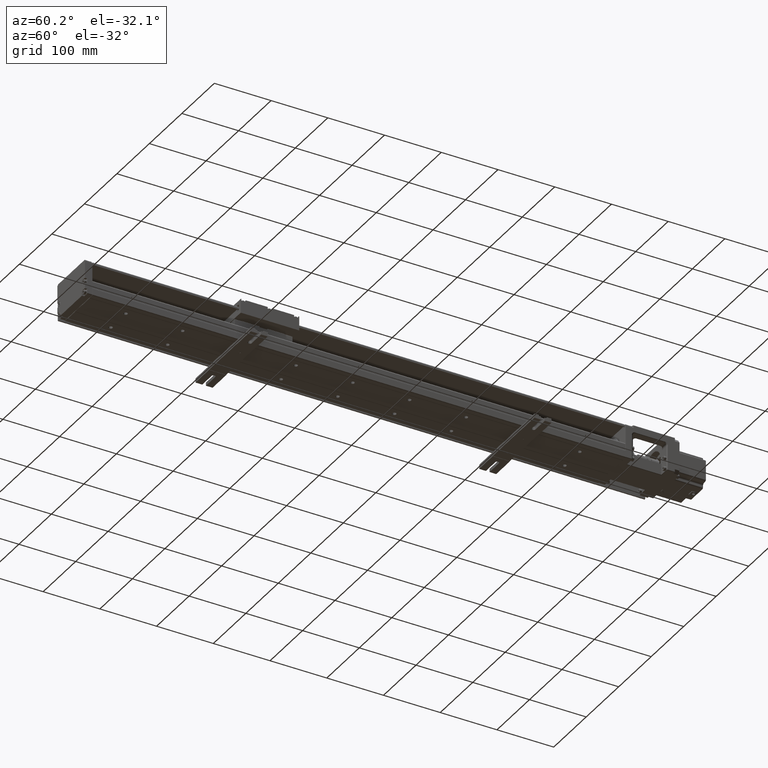
[diagram: clean part render]
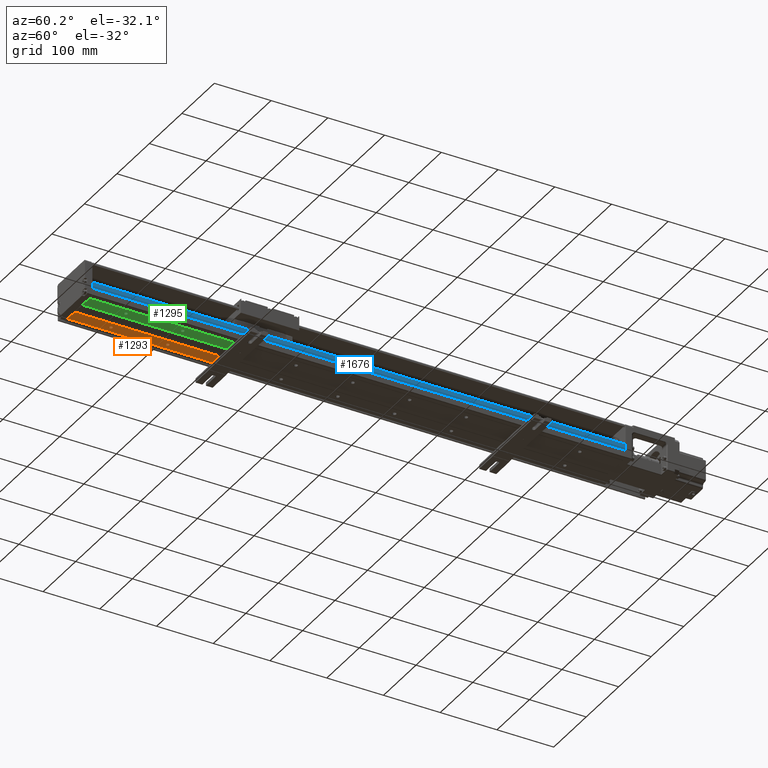
[diagram: same view with three faces highlighted in distinct colors, each labeled with its STEP entity id]
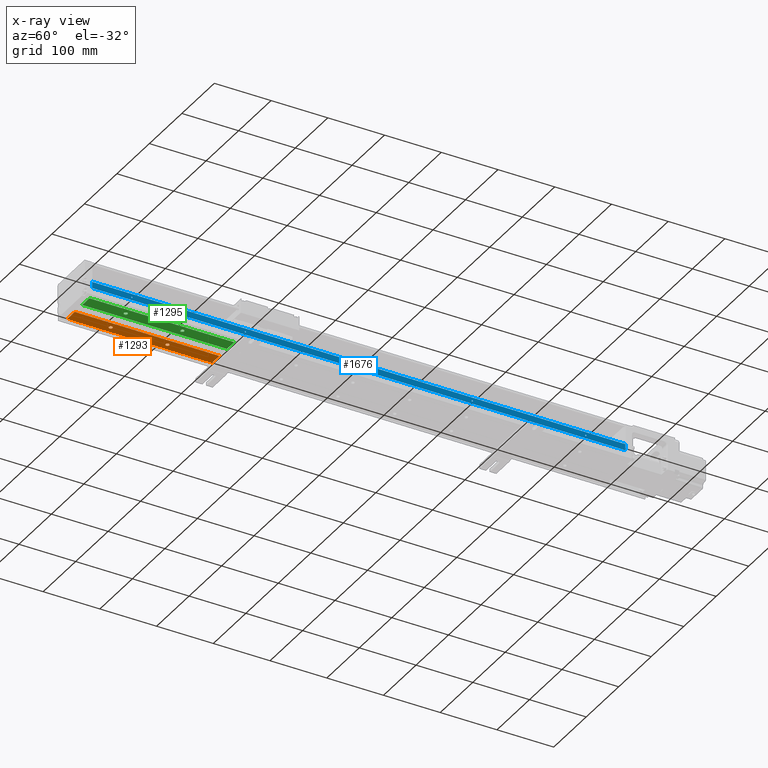
[diagram: x-ray of the same camera — body ghosted, the three highlighted faces saturated]
A machine part, auxiliary view with three faces highlighted in distinct colors.
The next image is the same camera in x-ray (body ghosted, the three faces saturated) — at least one of them is partly hidden behind the body in this view.
Their STEP definitions:

[orange] entity #1293 — the highlighted planar face has unit normal (0, 0, -1).
#79=FACE_BOUND('',#6492,.T.);
#80=FACE_BOUND('',#6493,.T.);
#1293=ADVANCED_FACE('',(#3860,#79,#80),#40313,.T.);
#3860=FACE_OUTER_BOUND('',#6491,.T.);
#6491=EDGE_LOOP('',(#13187,#13188,#13189,#13190));
#6492=EDGE_LOOP('',(#13191,#13192));
#6493=EDGE_LOOP('',(#13193,#13194));
#13187=ORIENTED_EDGE('',*,*,#24225,.T.);
#13188=ORIENTED_EDGE('',*,*,#24226,.F.);
#13189=ORIENTED_EDGE('',*,*,#24227,.T.);
#13190=ORIENTED_EDGE('',*,*,#24228,.T.);
#13191=ORIENTED_EDGE('',*,*,#26062,.T.);
#13192=ORIENTED_EDGE('',*,*,#28475,.T.);
#13193=ORIENTED_EDGE('',*,*,#26065,.T.);
#13194=ORIENTED_EDGE('',*,*,#28478,.T.);
#24225=EDGE_CURVE('',#36894,#36893,#30318,.T.);
#24226=EDGE_CURVE('',#36937,#36893,#30319,.T.);
#24227=EDGE_CURVE('',#36937,#36938,#30320,.T.);
#24228=EDGE_CURVE('',#36938,#36894,#30321,.T.);
#26062=EDGE_CURVE('',#36939,#39605,#33757,.T.);
#26065=EDGE_CURVE('',#36940,#39607,#33760,.T.);
#28475=EDGE_CURVE('',#39605,#36939,#35225,.T.);
#28478=EDGE_CURVE('',#39607,#36940,#35228,.T.);
#30318=B_SPLINE_CURVE_WITH_KNOTS('',1,(#96236,#96237),.UNSPECIFIED.,.F.,
 .F.,(2,2),(-6.9125,-4.6625),.UNSPECIFIED.);
#30319=B_SPLINE_CURVE_WITH_KNOTS('',1,(#96238,#96239),.UNSPECIFIED.,.F.,
 .F.,(2,2),(0.,255.),.UNSPECIFIED.);
#30320=B_SPLINE_CURVE_WITH_KNOTS('',1,(#96240,#96241),.UNSPECIFIED.,.F.,
 .F.,(2,2),(0.,22.5),.UNSPECIFIED.);
#30321=B_SPLINE_CURVE_WITH_KNOTS('',1,(#96242,#96243),.UNSPECIFIED.,.F.,
 .F.,(2,2),(0.,255.),.UNSPECIFIED.);
#33757=(
BOUNDED_CURVE()
B_SPLINE_CURVE(2,(#101321,#101322,#101323,#101324,#101325),
 .UNSPECIFIED.,.F.,.F.)
B_SPLINE_CURVE_WITH_KNOTS((3,2,3),(-3.14159265358979,-1.5707963267949,0.),
 .UNSPECIFIED.)
CURVE()
GEOMETRIC_REPRESENTATION_ITEM()
RATIONAL_B_SPLINE_CURVE((1.,0.707106781186548,1.,0.707106781186548,1.))
REPRESENTATION_ITEM('')
);
#33760=(
BOUNDED_CURVE()
B_SPLINE_CURVE(2,(#101333,#101334,#101335,#101336,#101337),
 .UNSPECIFIED.,.F.,.F.)
B_SPLINE_CURVE_WITH_KNOTS((3,2,3),(-3.14159265358979,-1.5707963267949,0.),
 .UNSPECIFIED.)
CURVE()
GEOMETRIC_REPRESENTATION_ITEM()
RATIONAL_B_SPLINE_CURVE((1.,0.707106781186548,1.,0.707106781186548,1.))
REPRESENTATION_ITEM('')
);
#35225=(
BOUNDED_CURVE()
B_SPLINE_CURVE(2,(#111465,#111466,#111467,#111468,#111469),
 .UNSPECIFIED.,.F.,.F.)
B_SPLINE_CURVE_WITH_KNOTS((3,2,3),(0.,1.5707963267949,3.14159265358979),
 .UNSPECIFIED.)
CURVE()
GEOMETRIC_REPRESENTATION_ITEM()
RATIONAL_B_SPLINE_CURVE((1.,0.707106781186548,1.,0.707106781186548,1.))
REPRESENTATION_ITEM('')
);
#35228=(
BOUNDED_CURVE()
B_SPLINE_CURVE(2,(#111477,#111478,#111479,#111480,#111481),
 .UNSPECIFIED.,.F.,.F.)
B_SPLINE_CURVE_WITH_KNOTS((3,2,3),(0.,1.5707963267949,3.14159265358979),
 .UNSPECIFIED.)
CURVE()
GEOMETRIC_REPRESENTATION_ITEM()
RATIONAL_B_SPLINE_CURVE((1.,0.707106781186548,1.,0.707106781186548,1.))
REPRESENTATION_ITEM('')
);
#36893=VERTEX_POINT('',#70388);
#36894=VERTEX_POINT('',#70389);
#36937=VERTEX_POINT('',#70432);
#36938=VERTEX_POINT('',#70433);
#36939=VERTEX_POINT('',#70434);
#36940=VERTEX_POINT('',#70435);
#39605=VERTEX_POINT('',#73100);
#39607=VERTEX_POINT('',#73102);
#40313=PLANE('',#42824);
#42824=AXIS2_PLACEMENT_3D('',#64579,#44745,$);
#44745=DIRECTION('',(0.,0.,-1.));
#64579=CARTESIAN_POINT('',(-11.499,-538.506304171534,8.00000027686727));
#70388=CARTESIAN_POINT('',(-11.5,-283.505304171534,8.00000027771726));
#70389=CARTESIAN_POINT('',(-34.,-283.505304171534,8.00000027771726));
#70432=CARTESIAN_POINT('',(-11.5,-538.505304171534,8.00000027686727));
#70433=CARTESIAN_POINT('',(-34.,-538.505304171534,8.00000027686727));
#70434=CARTESIAN_POINT('',(-26.3,-468.505304171534,8.00000027686727));
#70435=CARTESIAN_POINT('',(-26.3,-368.505304171534,8.00000027686727));
#73100=CARTESIAN_POINT('',(-19.7,-468.505304171534,8.00000027686727));
#73102=CARTESIAN_POINT('',(-19.7,-368.505304171534,8.00000027686727));
#96236=CARTESIAN_POINT('',(-34.,-283.505304171534,8.00000027771726));
#96237=CARTESIAN_POINT('',(-11.5,-283.505304171534,8.00000027771726));
#96238=CARTESIAN_POINT('',(-11.5,-538.505304171534,8.00000027686727));
#96239=CARTESIAN_POINT('',(-11.5,-283.505304171534,8.00000027771726));
#96240=CARTESIAN_POINT('',(-11.5,-538.505304171534,8.00000027686727));
#96241=CARTESIAN_POINT('',(-34.,-538.505304171534,8.00000027686727));
#96242=CARTESIAN_POINT('',(-34.,-538.505304171534,8.00000027686727));
#96243=CARTESIAN_POINT('',(-34.,-283.505304171534,8.00000027771726));
#101321=CARTESIAN_POINT('',(-26.3,-468.505304171534,8.00000027686727));
#101322=CARTESIAN_POINT('',(-26.3,-471.805304171534,8.00000027686726));
#101323=CARTESIAN_POINT('',(-23.,-471.805304171534,8.00000027686727));
#101324=CARTESIAN_POINT('',(-19.7,-471.805304171534,8.00000027686726));
#101325=CARTESIAN_POINT('',(-19.7,-468.505304171534,8.00000027686727));
#101333=CARTESIAN_POINT('',(-26.3,-368.505304171534,8.00000027686727));
#101334=CARTESIAN_POINT('',(-26.3,-371.805304171534,8.00000027686726));
#101335=CARTESIAN_POINT('',(-23.,-371.805304171534,8.00000027686727));
#101336=CARTESIAN_POINT('',(-19.7,-371.805304171534,8.00000027686726));
#101337=CARTESIAN_POINT('',(-19.7,-368.505304171534,8.00000027686727));
#111465=CARTESIAN_POINT('',(-19.7,-468.505304171534,8.00000027686727));
#111466=CARTESIAN_POINT('',(-19.7,-465.205304171534,8.00000027686726));
#111467=CARTESIAN_POINT('',(-23.,-465.205304171535,8.00000027686727));
#111468=CARTESIAN_POINT('',(-26.3,-465.205304171534,8.00000027686726));
#111469=CARTESIAN_POINT('',(-26.3,-468.505304171534,8.00000027686727));
#111477=CARTESIAN_POINT('',(-19.7,-368.505304171534,8.00000027686727));
#111478=CARTESIAN_POINT('',(-19.7,-365.205304171535,8.00000027686726));
#111479=CARTESIAN_POINT('',(-23.,-365.205304171534,8.00000027686727));
#111480=CARTESIAN_POINT('',(-26.3,-365.205304171535,8.00000027686726));
#111481=CARTESIAN_POINT('',(-26.3,-368.505304171534,8.00000027686727));

[blue] entity #1676 — the highlighted planar face has unit normal (1, 0, 0).
#252=FACE_BOUND('',#7048,.T.);
#253=FACE_BOUND('',#7049,.T.);
#254=FACE_BOUND('',#7050,.T.);
#255=FACE_BOUND('',#7051,.T.);
#256=FACE_BOUND('',#7052,.T.);
#1676=ADVANCED_FACE('',(#4243,#252,#253,#254,#255,#256),#40542,.T.);
#4243=FACE_OUTER_BOUND('',#7047,.T.);
#7047=EDGE_LOOP('',(#15383,#15384,#15385,#15386));
#7048=EDGE_LOOP('',(#15387,#15388));
#7049=EDGE_LOOP('',(#15389,#15390));
#7050=EDGE_LOOP('',(#15391,#15392));
#7051=EDGE_LOOP('',(#15393,#15394));
#7052=EDGE_LOOP('',(#15395,#15396));
#15383=ORIENTED_EDGE('',*,*,#25180,.T.);
#15384=ORIENTED_EDGE('',*,*,#25178,.F.);
#15385=ORIENTED_EDGE('',*,*,#25181,.T.);
#15386=ORIENTED_EDGE('',*,*,#25182,.T.);
#15387=ORIENTED_EDGE('',*,*,#25968,.T.);
#15388=ORIENTED_EDGE('',*,*,#28390,.T.);
#15389=ORIENTED_EDGE('',*,*,#25970,.T.);
#15390=ORIENTED_EDGE('',*,*,#28392,.T.);
#15391=ORIENTED_EDGE('',*,*,#25972,.T.);
#15392=ORIENTED_EDGE('',*,*,#28394,.T.);
#15393=ORIENTED_EDGE('',*,*,#25974,.T.);
#15394=ORIENTED_EDGE('',*,*,#28396,.T.);
#15395=ORIENTED_EDGE('',*,*,#25976,.T.);
#15396=ORIENTED_EDGE('',*,*,#28398,.T.);
#25178=EDGE_CURVE('',#37705,#37706,#33364,.T.);
#25180=EDGE_CURVE('',#37707,#37706,#30867,.T.);
#25181=EDGE_CURVE('',#37705,#37708,#30868,.T.);
#25182=EDGE_CURVE('',#37708,#37707,#30869,.T.);
#25968=EDGE_CURVE('',#37709,#39550,#33690,.T.);
#25970=EDGE_CURVE('',#37710,#39551,#33692,.T.);
#25972=EDGE_CURVE('',#37711,#39552,#33694,.T.);
#25974=EDGE_CURVE('',#37712,#39553,#33696,.T.);
#25976=EDGE_CURVE('',#37713,#39554,#33698,.T.);
#28390=EDGE_CURVE('',#39550,#37709,#35149,.T.);
#28392=EDGE_CURVE('',#39551,#37710,#35151,.T.);
#28394=EDGE_CURVE('',#39552,#37711,#35153,.T.);
#28396=EDGE_CURVE('',#39553,#37712,#35155,.T.);
#28398=EDGE_CURVE('',#39554,#37713,#35157,.T.);
#30867=B_SPLINE_CURVE_WITH_KNOTS('',1,(#98656,#98657),.UNSPECIFIED.,.F.,
 .F.,(2,2),(-11.180155426,-4.2401637756484E-11),.UNSPECIFIED.);
#30868=B_SPLINE_CURVE_WITH_KNOTS('',1,(#98658,#98659),.UNSPECIFIED.,.F.,
 .F.,(2,2),(4.2401637756484E-11,11.180155426),.UNSPECIFIED.);
#30869=B_SPLINE_CURVE_WITH_KNOTS('',1,(#98660,#98661),.UNSPECIFIED.,.F.,
 .F.,(2,2),(0.,940.),.UNSPECIFIED.);
#33364=(
BOUNDED_CURVE()
B_SPLINE_CURVE(1,(#98651,#98652),.UNSPECIFIED.,.F.,.F.)
B_SPLINE_CURVE_WITH_KNOTS((2,2),(-313.333333333334,0.),.UNSPECIFIED.)
CURVE()
GEOMETRIC_REPRESENTATION_ITEM()
RATIONAL_B_SPLINE_CURVE((1.,1.))
REPRESENTATION_ITEM('')
);
#33690=(
BOUNDED_CURVE()
B_SPLINE_CURVE(2,(#100878,#100879,#100880,#100881,#100882),
 .UNSPECIFIED.,.F.,.F.)
B_SPLINE_CURVE_WITH_KNOTS((3,2,3),(-3.14159265358979,-1.5707963267949,0.),
 .UNSPECIFIED.)
CURVE()
GEOMETRIC_REPRESENTATION_ITEM()
RATIONAL_B_SPLINE_CURVE((1.,0.707106781186548,1.,0.707106781186548,1.))
REPRESENTATION_ITEM('')
);
#33692=(
BOUNDED_CURVE()
B_SPLINE_CURVE(2,(#100885,#100886,#100887,#100888,#100889),
 .UNSPECIFIED.,.F.,.F.)
B_SPLINE_CURVE_WITH_KNOTS((3,2,3),(-3.14159265358979,-1.5707963267949,0.),
 .UNSPECIFIED.)
CURVE()
GEOMETRIC_REPRESENTATION_ITEM()
RATIONAL_B_SPLINE_CURVE((1.,0.707106781186548,1.,0.707106781186548,1.))
REPRESENTATION_ITEM('')
);
#33694=(
BOUNDED_CURVE()
B_SPLINE_CURVE(2,(#100892,#100893,#100894,#100895,#100896),
 .UNSPECIFIED.,.F.,.F.)
B_SPLINE_CURVE_WITH_KNOTS((3,2,3),(-3.14159265358979,-1.5707963267949,0.),
 .UNSPECIFIED.)
CURVE()
GEOMETRIC_REPRESENTATION_ITEM()
RATIONAL_B_SPLINE_CURVE((1.,0.707106781186548,1.,0.707106781186548,1.))
REPRESENTATION_ITEM('')
);
#33696=(
BOUNDED_CURVE()
B_SPLINE_CURVE(2,(#100899,#100900,#100901,#100902,#100903),
 .UNSPECIFIED.,.F.,.F.)
B_SPLINE_CURVE_WITH_KNOTS((3,2,3),(-3.14159265358979,-1.5707963267949,0.),
 .UNSPECIFIED.)
CURVE()
GEOMETRIC_REPRESENTATION_ITEM()
RATIONAL_B_SPLINE_CURVE((1.,0.707106781186548,1.,0.707106781186548,1.))
REPRESENTATION_ITEM('')
);
#33698=(
BOUNDED_CURVE()
B_SPLINE_CURVE(2,(#100906,#100907,#100908,#100909,#100910),
 .UNSPECIFIED.,.F.,.F.)
B_SPLINE_CURVE_WITH_KNOTS((3,2,3),(-3.14159265358979,-1.5707963267949,0.),
 .UNSPECIFIED.)
CURVE()
GEOMETRIC_REPRESENTATION_ITEM()
RATIONAL_B_SPLINE_CURVE((1.,0.707106781186548,1.,0.707106781186548,1.))
REPRESENTATION_ITEM('')
);
#35149=(
BOUNDED_CURVE()
B_SPLINE_CURVE(2,(#111091,#111092,#111093,#111094,#111095),
 .UNSPECIFIED.,.F.,.F.)
B_SPLINE_CURVE_WITH_KNOTS((3,2,3),(0.,1.5707963267949,3.14159265358979),
 .UNSPECIFIED.)
CURVE()
GEOMETRIC_REPRESENTATION_ITEM()
RATIONAL_B_SPLINE_CURVE((1.,0.707106781186548,1.,0.707106781186548,1.))
REPRESENTATION_ITEM('')
);
#35151=(
BOUNDED_CURVE()
B_SPLINE_CURVE(2,(#111098,#111099,#111100,#111101,#111102),
 .UNSPECIFIED.,.F.,.F.)
B_SPLINE_CURVE_WITH_KNOTS((3,2,3),(0.,1.5707963267949,3.14159265358979),
 .UNSPECIFIED.)
CURVE()
GEOMETRIC_REPRESENTATION_ITEM()
RATIONAL_B_SPLINE_CURVE((1.,0.707106781186548,1.,0.707106781186548,1.))
REPRESENTATION_ITEM('')
);
#35153=(
BOUNDED_CURVE()
B_SPLINE_CURVE(2,(#111105,#111106,#111107,#111108,#111109),
 .UNSPECIFIED.,.F.,.F.)
B_SPLINE_CURVE_WITH_KNOTS((3,2,3),(0.,1.5707963267949,3.14159265358979),
 .UNSPECIFIED.)
CURVE()
GEOMETRIC_REPRESENTATION_ITEM()
RATIONAL_B_SPLINE_CURVE((1.,0.707106781186548,1.,0.707106781186548,1.))
REPRESENTATION_ITEM('')
);
#35155=(
BOUNDED_CURVE()
B_SPLINE_CURVE(2,(#111112,#111113,#111114,#111115,#111116),
 .UNSPECIFIED.,.F.,.F.)
B_SPLINE_CURVE_WITH_KNOTS((3,2,3),(0.,1.5707963267949,3.14159265358979),
 .UNSPECIFIED.)
CURVE()
GEOMETRIC_REPRESENTATION_ITEM()
RATIONAL_B_SPLINE_CURVE((1.,0.707106781186548,1.,0.707106781186548,1.))
REPRESENTATION_ITEM('')
);
#35157=(
BOUNDED_CURVE()
B_SPLINE_CURVE(2,(#111119,#111120,#111121,#111122,#111123),
 .UNSPECIFIED.,.F.,.F.)
B_SPLINE_CURVE_WITH_KNOTS((3,2,3),(0.,1.5707963267949,3.14159265358979),
 .UNSPECIFIED.)
CURVE()
GEOMETRIC_REPRESENTATION_ITEM()
RATIONAL_B_SPLINE_CURVE((1.,0.707106781186548,1.,0.707106781186548,1.))
REPRESENTATION_ITEM('')
);
#37705=VERTEX_POINT('',#71200);
#37706=VERTEX_POINT('',#71201);
#37707=VERTEX_POINT('',#71202);
#37708=VERTEX_POINT('',#71203);
#37709=VERTEX_POINT('',#71204);
#37710=VERTEX_POINT('',#71205);
#37711=VERTEX_POINT('',#71206);
#37712=VERTEX_POINT('',#71207);
#37713=VERTEX_POINT('',#71208);
#39550=VERTEX_POINT('',#73045);
#39551=VERTEX_POINT('',#73046);
#39552=VERTEX_POINT('',#73047);
#39553=VERTEX_POINT('',#73048);
#39554=VERTEX_POINT('',#73049);
#40542=PLANE('',#43164);
#43164=AXIS2_PLACEMENT_3D('',#65434,#45085,$);
#45085=DIRECTION('',(1.,0.,0.));
#65434=CARTESIAN_POINT('',(41.9999996095,-538.506304171534,33.0811557062249));
#71200=CARTESIAN_POINT('',(41.9999996095,-538.505304171534,33.0801557062249));
#71201=CARTESIAN_POINT('',(41.9999996095,401.494695828466,33.0801557062249));
#71202=CARTESIAN_POINT('',(41.9999996095,401.494695828466,21.9000002802673));
#71203=CARTESIAN_POINT('',(41.9999996095,-538.505304171534,21.9000002802673));
#71204=CARTESIAN_POINT('',(41.9999996095,-468.505304171534,28.0565002768673));
#71205=CARTESIAN_POINT('',(41.9999996095,-268.505304171534,28.0565002768673));
#71206=CARTESIAN_POINT('',(41.9999996095,-68.5053041715345,28.0565002768673));
#71207=CARTESIAN_POINT('',(41.9999996095,131.494695828466,28.0565002768673));
#71208=CARTESIAN_POINT('',(41.9999996095,331.494695828466,28.0565002768673));
#73045=CARTESIAN_POINT('',(41.9999996095,-468.505304171534,25.9435002768673));
#73046=CARTESIAN_POINT('',(41.9999996095,-268.505304171534,25.9435002768673));
#73047=CARTESIAN_POINT('',(41.9999996095,-68.5053041715345,25.9435002768673));
#73048=CARTESIAN_POINT('',(41.9999996095,131.494695828466,25.9435002768673));
#73049=CARTESIAN_POINT('',(41.9999996095,331.494695828466,25.9435002768673));
#98651=CARTESIAN_POINT('',(41.9999996095,-538.505304171534,33.0801557062249));
#98652=CARTESIAN_POINT('',(41.9999996095,401.494695828466,33.0801557062249));
#98656=CARTESIAN_POINT('',(41.9999996095,401.494695828466,21.9000002802673));
#98657=CARTESIAN_POINT('',(41.9999996095,401.494695828466,33.0801557062249));
#98658=CARTESIAN_POINT('',(41.9999996095,-538.505304171534,33.0801557062249));
#98659=CARTESIAN_POINT('',(41.9999996095,-538.505304171534,21.9000002802673));
#98660=CARTESIAN_POINT('',(41.9999996095,-538.505304171534,21.9000002802673));
#98661=CARTESIAN_POINT('',(41.9999996095,401.494695828466,21.9000002802673));
#100878=CARTESIAN_POINT('',(41.9999996095,-468.505304171534,28.0565002768673));
#100879=CARTESIAN_POINT('',(41.9999996095,-467.448804171534,28.0565002768673));
#100880=CARTESIAN_POINT('',(41.9999996095,-467.448804171534,27.0000002768673));
#100881=CARTESIAN_POINT('',(41.9999996095,-467.448804171534,25.9435002768673));
#100882=CARTESIAN_POINT('',(41.9999996095,-468.505304171534,25.9435002768673));
#100885=CARTESIAN_POINT('',(41.9999996095,-268.505304171534,28.0565002768673));
#100886=CARTESIAN_POINT('',(41.9999996095,-267.448804171534,28.0565002768673));
#100887=CARTESIAN_POINT('',(41.9999996095,-267.448804171534,27.0000002768673));
#100888=CARTESIAN_POINT('',(41.9999996095,-267.448804171534,25.9435002768673));
#100889=CARTESIAN_POINT('',(41.9999996095,-268.505304171534,25.9435002768673));
#100892=CARTESIAN_POINT('',(41.9999996095,-68.5053041715345,28.0565002768673));
#100893=CARTESIAN_POINT('',(41.9999996095,-67.4488041715345,28.0565002768673));
#100894=CARTESIAN_POINT('',(41.9999996095,-67.4488041715345,27.0000002768673));
#100895=CARTESIAN_POINT('',(41.9999996095,-67.4488041715345,25.9435002768673));
#100896=CARTESIAN_POINT('',(41.9999996095,-68.5053041715345,25.9435002768673));
#100899=CARTESIAN_POINT('',(41.9999996095,131.494695828466,28.0565002768673));
#100900=CARTESIAN_POINT('',(41.9999996095,132.551195828466,28.0565002768673));
#100901=CARTESIAN_POINT('',(41.9999996095,132.551195828466,27.0000002768673));
#100902=CARTESIAN_POINT('',(41.9999996095,132.551195828466,25.9435002768673));
#100903=CARTESIAN_POINT('',(41.9999996095,131.494695828466,25.9435002768673));
#100906=CARTESIAN_POINT('',(41.9999996095,331.494695828466,28.0565002768673));
#100907=CARTESIAN_POINT('',(41.9999996095,332.551195828465,28.0565002768673));
#100908=CARTESIAN_POINT('',(41.9999996095,332.551195828466,27.0000002768673));
#100909=CARTESIAN_POINT('',(41.9999996095,332.551195828465,25.9435002768673));
#100910=CARTESIAN_POINT('',(41.9999996095,331.494695828466,25.9435002768673));
#111091=CARTESIAN_POINT('',(41.9999996095,-468.505304171534,25.9435002768673));
#111092=CARTESIAN_POINT('',(41.9999996095,-469.561804171535,25.9435002768673));
#111093=CARTESIAN_POINT('',(41.9999996095,-469.561804171535,27.0000002768673));
#111094=CARTESIAN_POINT('',(41.9999996095,-469.561804171535,28.0565002768673));
#111095=CARTESIAN_POINT('',(41.9999996095,-468.505304171534,28.0565002768673));
#111098=CARTESIAN_POINT('',(41.9999996095,-268.505304171534,25.9435002768673));
#111099=CARTESIAN_POINT('',(41.9999996095,-269.561804171535,25.9435002768673));
#111100=CARTESIAN_POINT('',(41.9999996095,-269.561804171535,27.0000002768673));
#111101=CARTESIAN_POINT('',(41.9999996095,-269.561804171535,28.0565002768673));
#111102=CARTESIAN_POINT('',(41.9999996095,-268.505304171534,28.0565002768673));
#111105=CARTESIAN_POINT('',(41.9999996095,-68.5053041715345,25.9435002768673));
#111106=CARTESIAN_POINT('',(41.9999996095,-69.5618041715345,25.9435002768673));
#111107=CARTESIAN_POINT('',(41.9999996095,-69.5618041715345,27.0000002768673));
#111108=CARTESIAN_POINT('',(41.9999996095,-69.5618041715345,28.0565002768673));
#111109=CARTESIAN_POINT('',(41.9999996095,-68.5053041715345,28.0565002768673));
#111112=CARTESIAN_POINT('',(41.9999996095,131.494695828466,25.9435002768673));
#111113=CARTESIAN_POINT('',(41.9999996095,130.438195828466,25.9435002768673));
#111114=CARTESIAN_POINT('',(41.9999996095,130.438195828465,27.0000002768673));
#111115=CARTESIAN_POINT('',(41.9999996095,130.438195828466,28.0565002768673));
#111116=CARTESIAN_POINT('',(41.9999996095,131.494695828466,28.0565002768673));
#111119=CARTESIAN_POINT('',(41.9999996095,331.494695828466,25.9435002768673));
#111120=CARTESIAN_POINT('',(41.9999996095,330.438195828465,25.9435002768673));
#111121=CARTESIAN_POINT('',(41.9999996095,330.438195828465,27.0000002768673));
#111122=CARTESIAN_POINT('',(41.9999996095,330.438195828465,28.0565002768673));
#111123=CARTESIAN_POINT('',(41.9999996095,331.494695828466,28.0565002768673));

[green] entity #1295 — the highlighted planar face has unit normal (0, 0, -1).
#85=FACE_BOUND('',#6500,.T.);
#86=FACE_BOUND('',#6501,.T.);
#1295=ADVANCED_FACE('',(#3862,#85,#86),#40315,.T.);
#3862=FACE_OUTER_BOUND('',#6499,.T.);
#6499=EDGE_LOOP('',(#13207,#13208,#13209,#13210));
#6500=EDGE_LOOP('',(#13211,#13212));
#6501=EDGE_LOOP('',(#13213,#13214));
#13207=ORIENTED_EDGE('',*,*,#24145,.T.);
#13208=ORIENTED_EDGE('',*,*,#24232,.F.);
#13209=ORIENTED_EDGE('',*,*,#24233,.T.);
#13210=ORIENTED_EDGE('',*,*,#24234,.T.);
#13211=ORIENTED_EDGE('',*,*,#26041,.T.);
#13212=ORIENTED_EDGE('',*,*,#28454,.T.);
#13213=ORIENTED_EDGE('',*,*,#26044,.T.);
#13214=ORIENTED_EDGE('',*,*,#28457,.T.);
#24145=EDGE_CURVE('',#36890,#36889,#30260,.T.);
#24232=EDGE_CURVE('',#36947,#36889,#30325,.T.);
#24233=EDGE_CURVE('',#36947,#36948,#30326,.T.);
#24234=EDGE_CURVE('',#36948,#36890,#30327,.T.);
#26041=EDGE_CURVE('',#36949,#39591,#33736,.T.);
#26044=EDGE_CURVE('',#36950,#39593,#33739,.T.);
#28454=EDGE_CURVE('',#39591,#36949,#35204,.T.);
#28457=EDGE_CURVE('',#39593,#36950,#35207,.T.);
#30260=B_SPLINE_CURVE_WITH_KNOTS('',1,(#96060,#96061),.UNSPECIFIED.,.F.,
 .F.,(2,2),(-4.637500019525,-2.387500019525),.UNSPECIFIED.);
#30325=B_SPLINE_CURVE_WITH_KNOTS('',1,(#96250,#96251),.UNSPECIFIED.,.F.,
 .F.,(2,2),(0.,255.),.UNSPECIFIED.);
#30326=B_SPLINE_CURVE_WITH_KNOTS('',1,(#96252,#96253),.UNSPECIFIED.,.F.,
 .F.,(2,2),(0.,22.5),.UNSPECIFIED.);
#30327=B_SPLINE_CURVE_WITH_KNOTS('',1,(#96254,#96255),.UNSPECIFIED.,.F.,
 .F.,(2,2),(0.,255.),.UNSPECIFIED.);
#33736=(
BOUNDED_CURVE()
B_SPLINE_CURVE(2,(#101237,#101238,#101239,#101240,#101241),
 .UNSPECIFIED.,.F.,.F.)
B_SPLINE_CURVE_WITH_KNOTS((3,2,3),(-3.14159265358979,-1.5707963267949,0.),
 .UNSPECIFIED.)
CURVE()
GEOMETRIC_REPRESENTATION_ITEM()
RATIONAL_B_SPLINE_CURVE((1.,0.707106781186548,1.,0.707106781186548,1.))
REPRESENTATION_ITEM('')
);
#33739=(
BOUNDED_CURVE()
B_SPLINE_CURVE(2,(#101249,#101250,#101251,#101252,#101253),
 .UNSPECIFIED.,.F.,.F.)
B_SPLINE_CURVE_WITH_KNOTS((3,2,3),(-3.14159265358979,-1.5707963267949,0.),
 .UNSPECIFIED.)
CURVE()
GEOMETRIC_REPRESENTATION_ITEM()
RATIONAL_B_SPLINE_CURVE((1.,0.707106781186548,1.,0.707106781186548,1.))
REPRESENTATION_ITEM('')
);
#35204=(
BOUNDED_CURVE()
B_SPLINE_CURVE(2,(#111381,#111382,#111383,#111384,#111385),
 .UNSPECIFIED.,.F.,.F.)
B_SPLINE_CURVE_WITH_KNOTS((3,2,3),(0.,1.5707963267949,3.14159265358979),
 .UNSPECIFIED.)
CURVE()
GEOMETRIC_REPRESENTATION_ITEM()
RATIONAL_B_SPLINE_CURVE((1.,0.707106781186548,1.,0.707106781186548,1.))
REPRESENTATION_ITEM('')
);
#35207=(
BOUNDED_CURVE()
B_SPLINE_CURVE(2,(#111393,#111394,#111395,#111396,#111397),
 .UNSPECIFIED.,.F.,.F.)
B_SPLINE_CURVE_WITH_KNOTS((3,2,3),(0.,1.5707963267949,3.14159265358979),
 .UNSPECIFIED.)
CURVE()
GEOMETRIC_REPRESENTATION_ITEM()
RATIONAL_B_SPLINE_CURVE((1.,0.707106781186548,1.,0.707106781186548,1.))
REPRESENTATION_ITEM('')
);
#36889=VERTEX_POINT('',#70384);
#36890=VERTEX_POINT('',#70385);
#36947=VERTEX_POINT('',#70442);
#36948=VERTEX_POINT('',#70443);
#36949=VERTEX_POINT('',#70444);
#36950=VERTEX_POINT('',#70445);
#39591=VERTEX_POINT('',#73086);
#39593=VERTEX_POINT('',#73088);
#40315=PLANE('',#42826);
#42826=AXIS2_PLACEMENT_3D('',#64581,#44747,$);
#44747=DIRECTION('',(0.,0.,-1.));
#64581=CARTESIAN_POINT('',(34.0009996095,-538.506304171534,8.00000028026727));
#70384=CARTESIAN_POINT('',(33.9999996095,-283.505304171534,8.00000028026727));
#70385=CARTESIAN_POINT('',(11.4999996095,-283.505304171534,8.00000028026727));
#70442=CARTESIAN_POINT('',(33.9999996095,-538.505304171534,8.00000028026726));
#70443=CARTESIAN_POINT('',(11.4999996095,-538.505304171534,8.00000028026727));
#70444=CARTESIAN_POINT('',(19.7,-468.505304171534,8.00000028026727));
#70445=CARTESIAN_POINT('',(19.7,-368.505304171534,8.00000028026727));
#73086=CARTESIAN_POINT('',(26.3,-468.505304171534,8.00000028026727));
#73088=CARTESIAN_POINT('',(26.3,-368.505304171534,8.00000028026727));
#96060=CARTESIAN_POINT('',(11.4999996095,-283.505304171534,8.00000028026727));
#96061=CARTESIAN_POINT('',(33.9999996095,-283.505304171534,8.00000028026727));
#96250=CARTESIAN_POINT('',(33.9999996095,-538.505304171534,8.00000028026726));
#96251=CARTESIAN_POINT('',(33.9999996095,-283.505304171534,8.00000028026727));
#96252=CARTESIAN_POINT('',(33.9999996095,-538.505304171534,8.00000028026726));
#96253=CARTESIAN_POINT('',(11.4999996095,-538.505304171534,8.00000028026727));
#96254=CARTESIAN_POINT('',(11.4999996095,-538.505304171534,8.00000028026727));
#96255=CARTESIAN_POINT('',(11.4999996095,-283.505304171534,8.00000028026727));
#101237=CARTESIAN_POINT('',(19.7,-468.505304171534,8.00000028026727));
#101238=CARTESIAN_POINT('',(19.7,-471.805304171534,8.00000028026726));
#101239=CARTESIAN_POINT('',(23.,-471.805304171534,8.00000028026727));
#101240=CARTESIAN_POINT('',(26.3,-471.805304171534,8.00000028026726));
#101241=CARTESIAN_POINT('',(26.3,-468.505304171534,8.00000028026727));
#101249=CARTESIAN_POINT('',(19.7,-368.505304171534,8.00000028026727));
#101250=CARTESIAN_POINT('',(19.7,-371.805304171534,8.00000028026726));
#101251=CARTESIAN_POINT('',(23.,-371.805304171534,8.00000028026727));
#101252=CARTESIAN_POINT('',(26.3,-371.805304171534,8.00000028026726));
#101253=CARTESIAN_POINT('',(26.3,-368.505304171534,8.00000028026727));
#111381=CARTESIAN_POINT('',(26.3,-468.505304171534,8.00000028026727));
#111382=CARTESIAN_POINT('',(26.3,-465.205304171534,8.00000028026726));
#111383=CARTESIAN_POINT('',(23.,-465.205304171535,8.00000028026727));
#111384=CARTESIAN_POINT('',(19.7,-465.205304171534,8.00000028026726));
#111385=CARTESIAN_POINT('',(19.7,-468.505304171534,8.00000028026727));
#111393=CARTESIAN_POINT('',(26.3,-368.505304171534,8.00000028026727));
#111394=CARTESIAN_POINT('',(26.3,-365.205304171535,8.00000028026726));
#111395=CARTESIAN_POINT('',(23.,-365.205304171534,8.00000028026727));
#111396=CARTESIAN_POINT('',(19.7,-365.205304171535,8.00000028026726));
#111397=CARTESIAN_POINT('',(19.7,-368.505304171534,8.00000028026727));